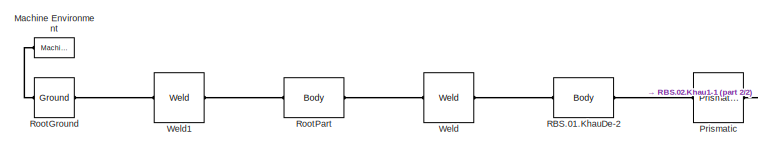
[diagram: root canvas - part 1/2, left side, full height]
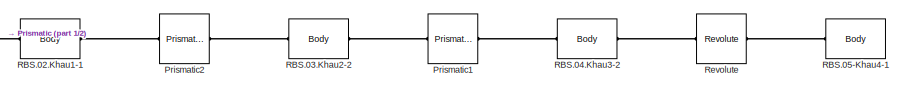
[diagram: root canvas - part 2/2, bottom right region]
MODEL slx_6aab9804f1a2
KIND model
CONFIG AbsTol = auto
CONFIG FixedStep = auto
CONFIG MaxStep = auto
CONFIG MinStep = auto
CONFIG RelTol = 1e-3
CONFIG SampleTimeConstraint = Unconstrained
CONFIG Solver = ode45
CONFIG SolverMode = Auto
CONFIG SolverName = ode45
CONFIG StartTime = 0.0
CONFIG StopTime = 10.0
BLOCK [Reference] Machine Environment  REF=mblibv1/Bodies/Machine
Environment
  AnalysisType = Forward dynamics
  AngularAssemblyTolerance = 1e-3
  AngularAssemblyToleranceUnits = rad
  BodyColorSelMode = Use model default
  BodyVisualizationType = Use model default body geometries
  ClassName = Environment
  ConstraintAbsTolerance = 1e-4
  ConstraintRelTolerance = 1e-4
  ConstraintSolverType = Stabilizing
  DefaultBodyColor = [1 0 0]
  DialogTemplateClass = MECH.MachineEnvironment
  Dimensionality = Auto-detect
  Gravity = [0 -9.81 0]
  GravityAsSignal = off
  GravityUnits = m/s^2
  LinearAssemblyTolerance = 1e-3
  LinearAssemblyToleranceUnits = m
  PerturbationSize = 1e-5
  PhysicalDomain = Mechanical
  PortType = env
  Ports = [0, 0, 0, 0, 0, 0, 1]
  RedundancyAnalysisTolerance = 1e-14
  RedundancyAnalysisToleranceType = Automatically select tolerance
  SourceBlock = mblibv1/Bodies/Machine\nEnvironment
  SourceType = Machine Environment
  StatePerturbationType = Fixed
  SyncWhenCopied = off
  UseRobustSingularityHandling = off
  VisualizeMachine = on
BLOCK [Reference] Prismatic  REF=mblibv1/Joints/Prismatic
  ClassName = Joint
  CutJoint = off
  DialogClass = JointBlock
  LConnTagsString = __newl0
  MarkAsCut = off
  NumSAPorts = 0
  P1Axis = [0,0,1]
  PMImportedID = RBS.01.KhauDe-2:-:RBS.02.Khau1-1
  Ports = [0, 0, 0, 0, 0, 1, 1]
  PrimitiveProps = P1$WORLD$[0,0,1]$prismatic
  Primitives = prismatic
  RConnTagsString = __newr0
  SourceBlock = mblibv1/Joints/Prismatic
  SourceType = Prismatic
  UpdateFromCAD = on
BLOCK [Reference] Prismatic1  REF=mblibv1/Joints/Prismatic
  ClassName = Joint
  CutJoint = off
  DialogClass = JointBlock
  LConnTagsString = __newl0
  MarkAsCut = off
  NumSAPorts = 0
  P1Axis = [0,-1,0]
  PMImportedID = RBS.03.Khau2-2:-:RBS.04.Khau3-2
  Ports = [0, 0, 0, 0, 0, 1, 1]
  PrimitiveProps = P1$WORLD$[0,-1,0]$prismatic
  Primitives = prismatic
  RConnTagsString = __newr0
  SourceBlock = mblibv1/Joints/Prismatic
  SourceType = Prismatic
  UpdateFromCAD = on
BLOCK [Reference] Prismatic2  REF=mblibv1/Joints/Prismatic
  ClassName = Joint
  CutJoint = off
  DialogClass = JointBlock
  LConnTagsString = __newl0
  MarkAsCut = off
  NumSAPorts = 0
  P1Axis = [-1,0,0]
  PMImportedID = RBS.02.Khau1-1:-:RBS.03.Khau2-2
  Ports = [0, 0, 0, 0, 0, 1, 1]
  PrimitiveProps = P1$WORLD$[-1,0,0]$prismatic
  Primitives = prismatic
  RConnTagsString = __newr0
  SourceBlock = mblibv1/Joints/Prismatic
  SourceType = Prismatic
  UpdateFromCAD = on
BLOCK [Reference] RBS.01.KhauDe-2  REF=mblibv1/Bodies/Body
  AttachedToCS = CS1
  BodyColor = [0.65098;0.619608;0.588235]
  BodyColorSelMode = COLORPALETTE
  CG = Right$CG$[1.35 0.730871 2.35]$WORLD$WORLD$m$[1 0 0;0 1 0;0 0 1]$3x3 Transform$rad$WORLD$false$RBS.01.KhauDe-2::CG(AUTOGEN)
  CGPos = [1.35 0.730871 2.35]
  CGRot = [1 0 0;0 1 0;0 0 1]
  CS0Pos = []
  CS0Rot = []
  CS10Pos = []
  CS10Rot = []
  CS11Pos = []
  CS11Rot = []
  CS12Pos = []
  CS12Rot = []
  CS13Pos = []
  CS13Rot = []
  CS14Pos = []
  CS14Rot = []
  CS15Pos = []
  CS15Rot = []
  CS16Pos = []
  CS16Rot = []
  CS17Pos = []
  CS17Rot = []
  CS18Pos = []
  CS18Rot = []
  CS19Pos = []
  CS19Rot = []
  CS1Pos = [0 0 0]
  CS1Rot = [1 0 0;0 1 0;0 0 1]
  CS20Pos = []
  CS20Rot = []
  CS2Pos = [1.35 0.730871 2.35]
  CS2Rot = [1 0 0;0 1 0;0 0 1]
  CS3Pos = [0.283311 0.05 2.89491]
  CS3Rot = [1 0 0;0 1 0;0 0 1]
  CS4Pos = []
  CS4Rot = []
  CS5Pos = []
  CS5Rot = []
  CS6Pos = []
  CS6Rot = []
  CS7Pos = []
  CS7Rot = []
  CS8Pos = []
  CS8Rot = []
  CS9Pos = []
  CS9Rot = []
  ClassName = Body
  Density = 1
  DensityUnits = kg/m^3
  DensityUse = false
  DialogClass = MechanicalBodyBlock
  GraphicsFileName = sualai - RBS.01.KhauDe-2.STL
  GraphicsMode = GFXFILE
  Inertia = [3.26313,0,0;0,3.76071,0;0,0,1.18222]
  InertiaUnits = kg*m^2
  LConnTagsString = CS2
  Mass = 0.481266
  MassUnits = kg
  PMImportedID = RBS.01.KhauDe-2
  Ports = [0, 0, 0, 0, 0, 1, 1]
  RConnTagsString = CS3
  Shape = Cylinder
  ShapeDims = [1 1]
  ShapeUnits = m
  ShapeUse = false
  SourceBlock = mblibv1/Bodies/Body
  SourceType = Body
  UpdateFromCAD = on
  WorkingFrames = Right$CS1$[0 0 0]$WORLD$WORLD$m$[1 0 0;0 1 0;0 0 1]$3x3 Transform$rad$WORLD$false$RBS.01.KhauDe-2::CS1(AUTOGEN)#Left$CS2$[1.35 0.730871 2.35]$WORLD$WORLD$m$[1 0 0;0 1 0;0 0 1]$3x3 Transform$rad$WORLD$true$RBS.01.KhauDe-2:-:sualai/RootPart::RBS.01.KhauDe-2(AUTOGEN)#Right$CS3$[0.283311 0.05 2.89491]$WORLD$WORLD$m$[1 0 0;0 1 0;0 0 1]$3x3 Transform$rad$WORLD$true$RBS.01.KhauDe-2:-:RBS.02.Khau1-1::RBS....<+20ch>
BLOCK [Reference] RBS.02.Khau1-1  REF=mblibv1/Bodies/Body
  AttachedToCS = CS1
  BodyColor = [0.65098;0.619608;0.588235]
  BodyColorSelMode = COLORPALETTE
  CG = Right$CG$[1.35 -0.0387363 -0.1]$WORLD$WORLD$m$[0 0 1;-1 0 0;0 -1 0]$3x3 Transform$rad$WORLD$false$RBS.02.Khau1-1::CG(AUTOGEN)
  CGPos = [1.35 -0.0387363 -0.1]
  CGRot = [0 0 1;-1 0 0;0 -1 0]
  CS0Pos = []
  CS0Rot = []
  CS10Pos = []
  CS10Rot = []
  CS11Pos = []
  CS11Rot = []
  CS12Pos = []
  CS12Rot = []
  CS13Pos = []
  CS13Rot = []
  CS14Pos = []
  CS14Rot = []
  CS15Pos = []
  CS15Rot = []
  CS16Pos = []
  CS16Rot = []
  CS17Pos = []
  CS17Rot = []
  CS18Pos = []
  CS18Rot = []
  CS19Pos = []
  CS19Rot = []
  CS1Pos = [0.2 -0.1 -0.1]
  CS1Rot = [0 0 1;-1 0 0;0 -1 0]
  CS20Pos = []
  CS20Rot = []
  CS2Pos = [0.283311 0.05 2.89491]
  CS2Rot = [1 0 0;0 1 0;0 0 1]
  CS3Pos = [0.692403 -0.1 -0.471467]
  CS3Rot = [1 0 0;0 1 0;0 0 1]
  CS4Pos = []
  CS4Rot = []
  CS5Pos = []
  CS5Rot = []
  CS6Pos = []
  CS6Rot = []
  CS7Pos = []
  CS7Rot = []
  CS8Pos = []
  CS8Rot = []
  CS9Pos = []
  CS9Rot = []
  ClassName = Body
  Density = 1
  DensityUnits = kg/m^3
  DensityUse = false
  DialogClass = MechanicalBodyBlock
  GraphicsFileName = sualai - RBS.02.Khau1-1.STL
  GraphicsMode = GFXFILE
  Inertia = [0.0767067,0,0;0,0.0683701,0;0,0,0.00850512]
  InertiaUnits = kg*m^2
  LConnTagsString = CS2
  Mass = 0.091
  MassUnits = kg
  PMImportedID = RBS.02.Khau1-1
  Ports = [0, 0, 0, 0, 0, 1, 1]
  RConnTagsString = CS3
  Shape = Cylinder
  ShapeDims = [1 1]
  ShapeUnits = m
  ShapeUse = false
  SourceBlock = mblibv1/Bodies/Body
  SourceType = Body
  UpdateFromCAD = on
  WorkingFrames = Right$CS1$[0.2 -0.1 -0.1]$WORLD$WORLD$m$[0 0 1;-1 0 0;0 -1 0]$3x3 Transform$rad$WORLD$false$RBS.02.Khau1-1::CS1(AUTOGEN)#Left$CS2$[0.283311 0.05 2.89491]$WORLD$WORLD$m$[1 0 0;0 1 0;0 0 1]$3x3 Transform$rad$WORLD$true$RBS.01.KhauDe-2:-:RBS.02.Khau1-1::RBS.02.Khau1-1(AUTOGEN)#Right$CS3$[0.692403 -0.1 -0.471467]$WORLD$WORLD$m$[1 0 0;0 1 0;0 0 1]$3x3 Transform$rad$WORLD$true$RBS.02.Khau1-1:-:RBS.03.Kh...<+30ch>
BLOCK [Reference] RBS.03.Khau2-2  REF=mblibv1/Bodies/Body
  AttachedToCS = CS1
  BodyColor = [1;0;0]
  BodyColorSelMode = COLORPALETTE
  CG = Right$CG$[0.213657 -0.135278 -0.1]$WORLD$WORLD$m$[0 1 0;0 0 1;1 0 0]$3x3 Transform$rad$WORLD$false$RBS.03.Khau2-2::CG(AUTOGEN)
  CGPos = [0.213657 -0.135278 -0.1]
  CGRot = [0 1 0;0 0 1;1 0 0]
  CS0Pos = []
  CS0Rot = []
  CS10Pos = []
  CS10Rot = []
  CS11Pos = []
  CS11Rot = []
  CS12Pos = []
  CS12Rot = []
  CS13Pos = []
  CS13Rot = []
  CS14Pos = []
  CS14Rot = []
  CS15Pos = []
  CS15Rot = []
  CS16Pos = []
  CS16Rot = []
  CS17Pos = []
  CS17Rot = []
  CS18Pos = []
  CS18Rot = []
  CS19Pos = []
  CS19Rot = []
  CS1Pos = [0.4 -1.09 -0.1]
  CS1Rot = [0 1 0;0 0 1;1 0 0]
  CS20Pos = []
  CS20Rot = []
  CS2Pos = [0.340796 -0.618126 -0.2]
  CS2Rot = [1 0 0;0 1 0;0 0 1]
  CS3Pos = [0.692403 -0.1 -0.471467]
  CS3Rot = [1 0 0;0 1 0;0 0 1]
  CS4Pos = []
  CS4Rot = []
  CS5Pos = []
  CS5Rot = []
  CS6Pos = []
  CS6Rot = []
  CS7Pos = []
  CS7Rot = []
  CS8Pos = []
  CS8Rot = []
  CS9Pos = []
  CS9Rot = []
  ClassName = Body
  Density = 1
  DensityUnits = kg/m^3
  DensityUse = false
  DialogClass = MechanicalBodyBlock
  GraphicsFileName = sualai - RBS.03.Khau2-2.STL
  GraphicsMode = GFXFILE
  Inertia = [193.644,0,0;0,196.51,-6.39404;0,-6.39404,12.4099]
  InertiaUnits = kg*m^2
  LConnTagsString = CS3
  Mass = 678.24
  MassUnits = kg
  PMImportedID = RBS.03.Khau2-2
  Ports = [0, 0, 0, 0, 0, 1, 1]
  RConnTagsString = CS2
  Shape = Cylinder
  ShapeDims = [1 1]
  ShapeUnits = m
  ShapeUse = false
  SourceBlock = mblibv1/Bodies/Body
  SourceType = Body
  UpdateFromCAD = on
  WorkingFrames = Right$CS1$[0.4 -1.09 -0.1]$WORLD$WORLD$m$[0 1 0;0 0 1;1 0 0]$3x3 Transform$rad$WORLD$false$RBS.03.Khau2-2::CS1(AUTOGEN)#Right$CS2$[0.340796 -0.618126 -0.2]$WORLD$WORLD$m$[1 0 0;0 1 0;0 0 1]$3x3 Transform$rad$WORLD$true$RBS.03.Khau2-2:-:RBS.04.Khau3-2::RBS.03.Khau2-2(AUTOGEN)#Left$CS3$[0.692403 -0.1 -0.471467]$WORLD$WORLD$m$[1 0 0;0 1 0;0 0 1]$3x3 Transform$rad$WORLD$true$RBS.02.Khau1-1:-:RBS.03.Kh...<+30ch>
BLOCK [Reference] RBS.04.Khau3-2  REF=mblibv1/Bodies/Body
  AttachedToCS = CS1
  BodyColor = [0;1;1]
  BodyColorSelMode = COLORPALETTE
  CG = Right$CG$[0.4 -0.137732 -0.1]$WORLD$WORLD$m$[0 1 0;0 0 1;1 0 0]$3x3 Transform$rad$WORLD$false$RBS.04.Khau3-2::CG(AUTOGEN)
  CGPos = [0.4 -0.137732 -0.1]
  CGRot = [0 1 0;0 0 1;1 0 0]
  CS0Pos = []
  CS0Rot = []
  CS10Pos = []
  CS10Rot = []
  CS11Pos = []
  CS11Rot = []
  CS12Pos = []
  CS12Rot = []
  CS13Pos = []
  CS13Rot = []
  CS14Pos = []
  CS14Rot = []
  CS15Pos = []
  CS15Rot = []
  CS16Pos = []
  CS16Rot = []
  CS17Pos = []
  CS17Rot = []
  CS18Pos = []
  CS18Rot = []
  CS19Pos = []
  CS19Rot = []
  CS1Pos = [0.4 0.71 -0.1]
  CS1Rot = [0 1 0;0 0 1;1 0 0]
  CS20Pos = []
  CS20Rot = []
  CS2Pos = [0.4 0.71 -0.1]
  CS2Rot = [1 0 0;0 1 0;0 0 1]
  CS3Pos = [0.340796 -0.618126 -0.2]
  CS3Rot = [1 0 0;0 1 0;0 0 1]
  CS4Pos = []
  CS4Rot = []
  CS5Pos = []
  CS5Rot = []
  CS6Pos = []
  CS6Rot = []
  CS7Pos = []
  CS7Rot = []
  CS8Pos = []
  CS8Rot = []
  CS9Pos = []
  CS9Rot = []
  ClassName = Body
  Density = 1
  DensityUnits = kg/m^3
  DensityUse = false
  DialogClass = MechanicalBodyBlock
  GraphicsFileName = sualai - RBS.04.Khau3-2.STL
  GraphicsMode = GFXFILE
  Inertia = [112.705,0,0;0,112.705,0;0,0,3.324]
  InertiaUnits = kg*m^2
  LConnTagsString = CS3
  Mass = 368.144
  MassUnits = kg
  PMImportedID = RBS.04.Khau3-2
  Ports = [0, 0, 0, 0, 0, 1, 1]
  RConnTagsString = CS2
  Shape = Cylinder
  ShapeDims = [1 1]
  ShapeUnits = m
  ShapeUse = false
  SourceBlock = mblibv1/Bodies/Body
  SourceType = Body
  UpdateFromCAD = on
  WorkingFrames = Right$CS1$[0.4 0.71 -0.1]$WORLD$WORLD$m$[0 1 0;0 0 1;1 0 0]$3x3 Transform$rad$WORLD$false$RBS.04.Khau3-2::CS1(AUTOGEN)#Right$CS2$[0.4 0.71 -0.1]$WORLD$WORLD$m$[1 0 0;0 1 0;0 0 1]$3x3 Transform$rad$WORLD$true$RBS.04.Khau3-2:-:RBS.05-Khau4-1::RBS.04.Khau3-2(AUTOGEN)#Left$CS3$[0.340796 -0.618126 -0.2]$WORLD$WORLD$m$[1 0 0;0 1 0;0 0 1]$3x3 Transform$rad$WORLD$true$RBS.03.Khau2-2:-:RBS.04.Khau3-2::RBS....<+19ch>
BLOCK [Reference] RBS.05-Khau4-1  REF=mblibv1/Bodies/Body
  AttachedToCS = CS1
  BodyColor = [1;1;0]
  BodyColorSelMode = COLORPALETTE
  CG = Right$CG$[0.399939 0.76 -0.0952544]$WORLD$WORLD$m$[-0.0129085 0.999917 0;0 0 1;0.999917 0.0129085 0]$3x3 Transform$rad$WORLD$false$RBS.05-Khau4-1::CG(AUTOGEN)
  CGPos = [0.399939 0.76 -0.0952544]
  CGRot = [-0.0129085 0.999917 0;0 0 1;0.999917 0.0129085 0]
  CS0Pos = []
  CS0Rot = []
  CS10Pos = []
  CS10Rot = []
  CS11Pos = []
  CS11Rot = []
  CS12Pos = []
  CS12Rot = []
  CS13Pos = []
  CS13Rot = []
  CS14Pos = []
  CS14Rot = []
  CS15Pos = []
  CS15Rot = []
  CS16Pos = []
  CS16Rot = []
  CS17Pos = []
  CS17Rot = []
  CS18Pos = []
  CS18Rot = []
  CS19Pos = []
  CS19Rot = []
  CS1Pos = [0.396773 0.76 0.149979]
  CS1Rot = [-0.0129085 0.999917 0;0 0 1;0.999917 0.0129085 0]
  CS20Pos = []
  CS20Rot = []
  CS2Pos = [0.4 0.71 -0.1]
  CS2Rot = [1 0 0;0 1 0;0 0 1]
  CS3Pos = []
  CS3Rot = []
  CS4Pos = []
  CS4Rot = []
  CS5Pos = []
  CS5Rot = []
  CS6Pos = []
  CS6Rot = []
  CS7Pos = []
  CS7Rot = []
  CS8Pos = []
  CS8Rot = []
  CS9Pos = []
  CS9Rot = []
  ClassName = Body
  Density = 1
  DensityUnits = kg/m^3
  DensityUse = false
  DialogClass = MechanicalBodyBlock
  GraphicsFileName = sualai - RBS.05-Khau4-1.STL
  GraphicsMode = GFXFILE
  Inertia = [0.122087,0,0;0,0.139242,0;0,0,0.219027]
  InertiaUnits = kg*m^2
  LConnTagsString = CS2
  Mass = 26.144
  MassUnits = kg
  PMImportedID = RBS.05-Khau4-1
  Ports = [0, 0, 0, 0, 0, 1]
  Shape = Cylinder
  ShapeDims = [1 1]
  ShapeUnits = m
  ShapeUse = false
  SourceBlock = mblibv1/Bodies/Body
  SourceType = Body
  UpdateFromCAD = on
  WorkingFrames = Right$CS1$[0.396773 0.76 0.149979]$WORLD$WORLD$m$[-0.0129085 0.999917 0;0 0 1;0.999917 0.0129085 0]$3x3 Transform$rad$WORLD$false$RBS.05-Khau4-1::CS1(AUTOGEN)#Left$CS2$[0.4 0.71 -0.1]$WORLD$WORLD$m$[1 0 0;0 1 0;0 0 1]$3x3 Transform$rad$WORLD$true$RBS.04.Khau3-2:-:RBS.05-Khau4-1::RBS.05-Khau4-1(AUTOGEN)
BLOCK [Reference] Revolute  REF=mblibv1/Joints/Revolute
  ClassName = Joint
  CutJoint = off
  DialogClass = JointBlock
  LConnTagsString = __newl0
  MarkAsCut = off
  NumSAPorts = 0
  PMImportedID = RBS.04.Khau3-2:-:RBS.05-Khau4-1
  Ports = [0, 0, 0, 0, 0, 1, 1]
  PrimitiveProps = R1$WORLD$[0,1,0]$revolute
  Primitives = prismatic
  R1Axis = [0,1,0]
  RConnTagsString = __newr0
  SourceBlock = mblibv1/Joints/Revolute
  SourceType = Revolute
  UpdateFromCAD = on
BLOCK [Reference] RootGround  REF=mblibv1/Bodies/Ground
  ClassName = Ground
  CoordPosition = [1.14419,0.469185,1.56332]
  CoordPositionUnits = m
  DialogClass = GroundBlock
  LeftPortType = env
  MachineId = [2 0]
  PMImportedID = RootGround
  ParameterChecksum = [2537667724, 1906774507, 1690828522, 558254702]
  PhysicalDomain = Mechanical
  Ports = [0, 0, 0, 0, 0, 1, 1]
  RightPortType = workingframe
  ShowEnvPort = on
  SourceBlock = mblibv1/Bodies/Ground
  SourceType = Ground
  StateVectorMgrId = 1
  TopologyChecksum = [892152192, 2153372925, 310781253, 957395988]
  UpdateFromCAD = on
  UserDataPersistent = on
BLOCK [Reference] RootPart  REF=mblibv1/Bodies/Body
  AttachedToCS = CS1
  BodyColor = [1;0;0]
  BodyColorSelMode = MACHINE_DEFAULT
  CG = Right$CG$[1.14419 0.469185 1.56332]$WORLD$WORLD$m$[1 0 0;0 1 0;0 0 1]$3x3 Transform$rad$WORLD$false$sualai/RootPart::CG(AUTOGEN)
  CGPos = [1.14419 0.469185 1.56332]
  CGRot = [1 0 0;0 1 0;0 0 1]
  CS0Pos = []
  CS0Rot = []
  CS10Pos = []
  CS10Rot = []
  CS11Pos = []
  CS11Rot = []
  CS12Pos = []
  CS12Rot = []
  CS13Pos = []
  CS13Rot = []
  CS14Pos = []
  CS14Rot = []
  CS15Pos = []
  CS15Rot = []
  CS16Pos = []
  CS16Rot = []
  CS17Pos = []
  CS17Rot = []
  CS18Pos = []
  CS18Rot = []
  CS19Pos = []
  CS19Rot = []
  CS1Pos = [0 0 0]
  CS1Rot = [1 0 0;0 1 0;0 0 1]
  CS20Pos = []
  CS20Rot = []
  CS2Pos = [1.35 0.730871 2.35]
  CS2Rot = [1 0 0;0 1 0;0 0 1]
  CS3Pos = [1.14419 0.469185 1.56332]
  CS3Rot = [1 0 0;0 1 0;0 0 1]
  CS4Pos = []
  CS4Rot = []
  CS5Pos = []
  CS5Rot = []
  CS6Pos = []
  CS6Rot = []
  CS7Pos = []
  CS7Rot = []
  CS8Pos = []
  CS8Rot = []
  CS9Pos = []
  CS9Rot = []
  ClassName = Body
  Density = 1
  DensityUnits = kg/m^3
  DensityUse = false
  DialogClass = MechanicalBodyBlock
  GraphicsMode = MACHINE_DEFAULT
  Inertia = [0,0,0;0,0,0;0,0,0]
  InertiaUnits = kg*m^2
  LConnTagsString = CS3
  Mass = 0
  MassUnits = kg
  PMImportedID = sualai/RootPart
  Ports = [0, 0, 0, 0, 0, 1, 1]
  RConnTagsString = CS2
  Shape = Cylinder
  ShapeDims = [1 1]
  ShapeUnits = m
  ShapeUse = false
  SourceBlock = mblibv1/Bodies/Body
  SourceType = Body
  UpdateFromCAD = on
  WorkingFrames = Right$CS1$[0 0 0]$WORLD$WORLD$m$[1 0 0;0 1 0;0 0 1]$3x3 Transform$rad$WORLD$false$sualai/RootPart::CS1(AUTOGEN)#Right$CS2$[1.35 0.730871 2.35]$WORLD$WORLD$m$[1 0 0;0 1 0;0 0 1]$3x3 Transform$rad$WORLD$true$RBS.01.KhauDe-2:-:sualai/RootPart::sualai/RootPart(AUTOGEN)#Left$CS3$[1.14419 0.469185 1.56332]$WORLD$WORLD$m$[1 0 0;0 1 0;0 0 1]$3x3 Transform$rad$WORLD$true$RootGround:-:sualai/RootPart::suala...<+19ch>
BLOCK [Reference] Weld  REF=mblibv1/Joints/Weld
  ClassName = Joint
  CutJoint = off
  DialogClass = JointBlock
  LConnTagsString = __newl0
  MarkAsCut = off
  NumSAPorts = 0
  PMImportedID = RBS.01.KhauDe-2:-:sualai/RootPart
  Ports = [0, 0, 0, 0, 0, 1, 1]
  PrimitiveProps = W$WORLD$[0.57735,0.57735,0.57735]$weld
  Primitives = weld
  RConnTagsString = __newr0
  SourceBlock = mblibv1/Joints/Weld
  SourceType = Weld
  UpdateFromCAD = on
  WAxis = [0.57735,0.57735,0.57735]
BLOCK [Reference] Weld1  REF=mblibv1/Joints/Weld
  ClassName = Joint
  CutJoint = off
  DialogClass = JointBlock
  LConnTagsString = __newl0
  MarkAsCut = off
  NumSAPorts = 0
  PMImportedID = RootGround:-:sualai/RootPart
  Ports = [0, 0, 0, 0, 0, 1, 1]
  PrimitiveProps = W$WORLD$[0.57735,0.57735,0.57735]$weld
  Primitives = weld
  RConnTagsString = __newr0
  SourceBlock = mblibv1/Joints/Weld
  SourceType = Weld
  UpdateFromCAD = on
  WAxis = [0.57735,0.57735,0.57735]
PLINE Machine Environment:RConn1 -- RootGround:LConn1
PLINE Prismatic1:LConn1 -- RBS.03.Khau2-2:RConn1
PLINE Prismatic1:RConn1 -- RBS.04.Khau3-2:LConn1
PLINE Prismatic2:LConn1 -- RBS.02.Khau1-1:RConn1
PLINE Prismatic2:RConn1 -- RBS.03.Khau2-2:LConn1
PLINE Prismatic:LConn1 -- RBS.01.KhauDe-2:RConn1
PLINE Prismatic:RConn1 -- RBS.02.Khau1-1:LConn1
PLINE RBS.01.KhauDe-2:LConn1 -- Weld:RConn1
PLINE RBS.04.Khau3-2:RConn1 -- Revolute:LConn1
PLINE RBS.05-Khau4-1:LConn1 -- Revolute:RConn1
PLINE RootGround:RConn1 -- Weld1:LConn1
PLINE RootPart:LConn1 -- Weld1:RConn1
PLINE RootPart:RConn1 -- Weld:LConn1
